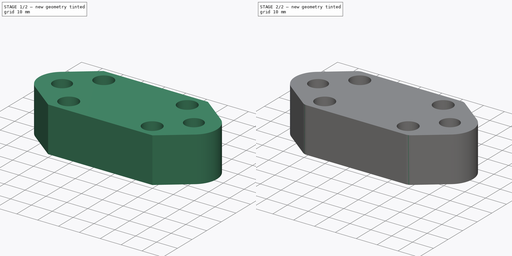
[diagram: build sequence overview — one tinted view per stage of 2, left to right]
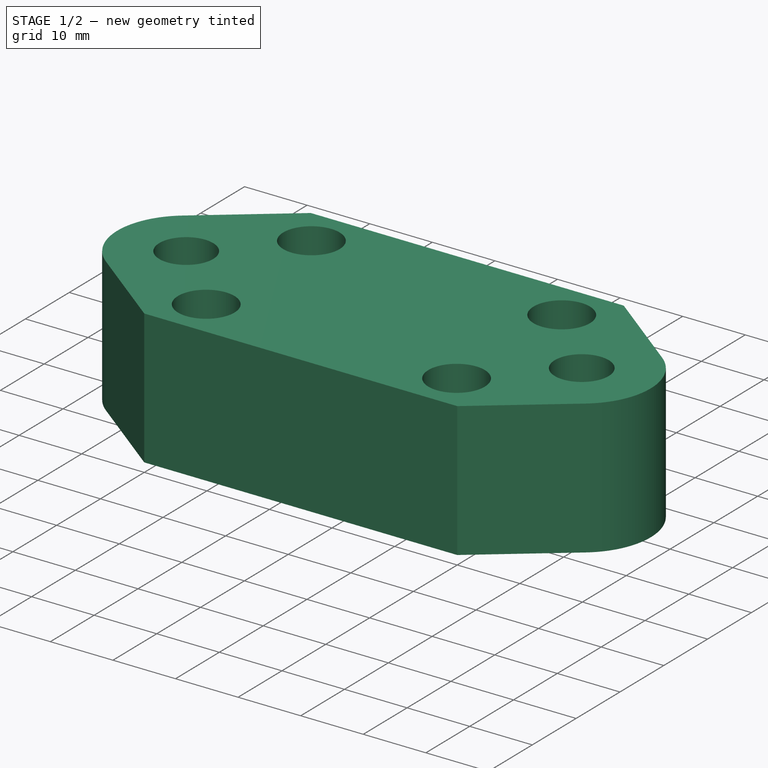
[diagram: stage 1 of 2 — iso view after this stage's code; geometry added in this stage tinted green]
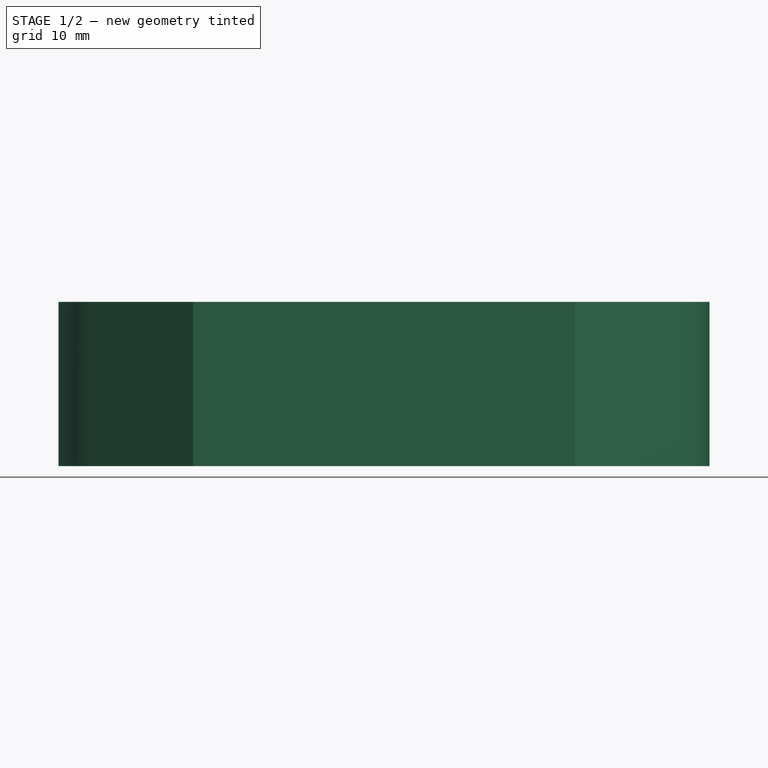
[diagram: stage 1 of 2 — front view after this stage's code; geometry added in this stage tinted green]
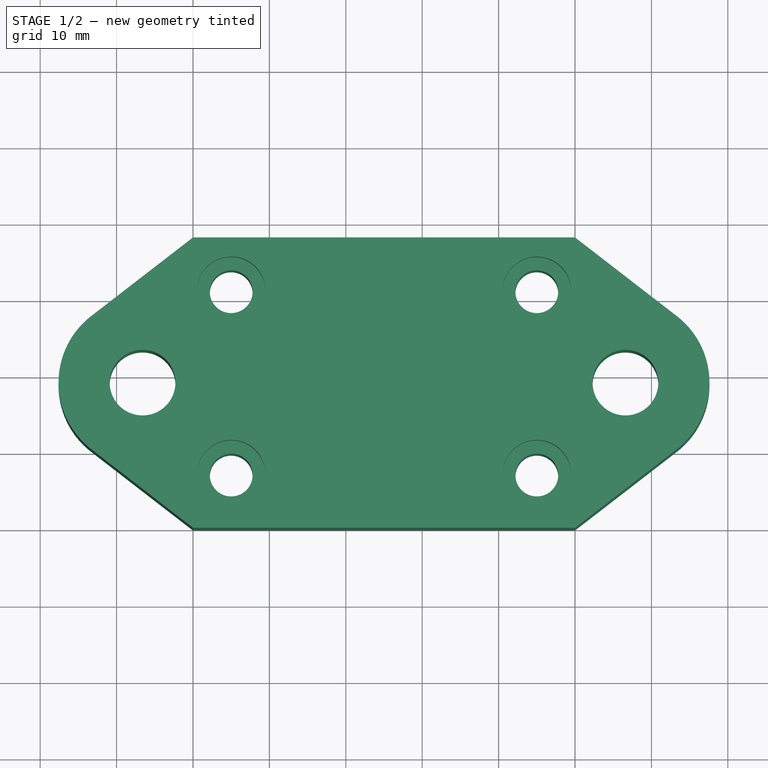
[diagram: stage 1 of 2 — top view after this stage's code; geometry added in this stage tinted green]
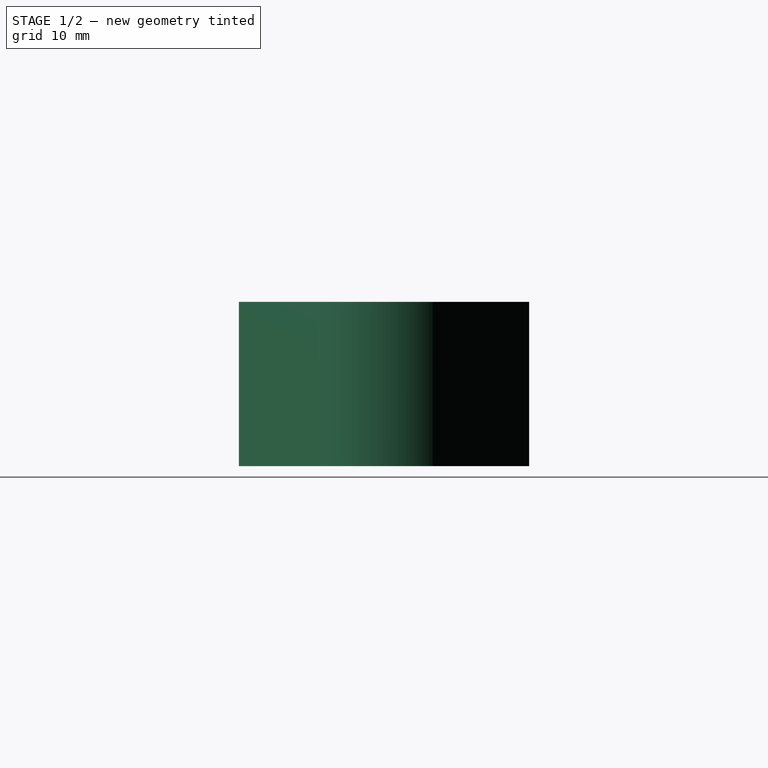
[diagram: stage 1 of 2 — right view after this stage's code; geometry added in this stage tinted green]
FCSTD DOCUMENT  (FreeCAD 1.0R39109 (Git))
Label: DSG16H_to_profile_40x40
License: All rights reserved
LicenseURL: https://en.wikipedia.org/wiki/All_rights_reserved
objects: Sketcher::SketchObject×3, PartDesign::Pocket×2, PartDesign::Pad×1, PartDesign::Fillet×1, PartDesign::Body×1
note: 19 computed .brp shape members not serialized (recipe doc carries the construction recipe); baked Part::Feature solids carry a one-line shape summary decoded from their .brp

FEATURE [Sketcher::SketchObject] Sketch
  ArcFitTolerance = 1e-06
  AttachmentSupport = -> [XY_Plane]
  FullyConstrained = true
  MakeInternals = false
  MapMode = 5
  sketch-geometry (24):
    g0: LineSegment StartX=0 StartY=0 StartZ=0 EndX=50 EndY=0 EndZ=0
    g1: LineSegment StartX=50 StartY=38 StartZ=0 EndX=0 EndY=38 EndZ=0
    g2: LineSegment [constr] StartX=5 StartY=7 StartZ=0 EndX=45 EndY=7 EndZ=0
    g3: LineSegment [constr] StartX=45 StartY=7 StartZ=0 EndX=45 EndY=31 EndZ=0
    g4: LineSegment [constr] StartX=45 StartY=31 StartZ=0 EndX=5 EndY=31 EndZ=0
    g5: LineSegment [constr] StartX=5 StartY=31 StartZ=0 EndX=5 EndY=7 EndZ=0
    g6: LineSegment [constr] StartX=0 StartY=0 StartZ=0 EndX=5 EndY=7 EndZ=0
    g7: LineSegment [constr] StartX=5 StartY=31 StartZ=0 EndX=0 EndY=38 EndZ=0
    g8: LineSegment [constr] StartX=45 StartY=31 StartZ=0 EndX=50 EndY=38 EndZ=0
    g9: Circle CenterX=5 CenterY=31 CenterZ=0 NormalX=0 NormalY=0 NormalZ=1 AngleXU=0 Radius=2.8
    g10: Circle CenterX=45 CenterY=31 CenterZ=0 NormalX=0 NormalY=0 NormalZ=1 AngleXU=0 Radius=2.8
    g11: Circle CenterX=45 CenterY=7 CenterZ=0 NormalX=0 NormalY=0 NormalZ=1 AngleXU=0 Radius=2.8
    g12: Circle CenterX=5 CenterY=7 CenterZ=0 NormalX=0 NormalY=0 NormalZ=1 AngleXU=0 Radius=2.8
    g13: Circle [constr] CenterX=-6.6 CenterY=19 CenterZ=0 NormalX=0 NormalY=0 NormalZ=1 AngleXU=0 Radius=6.6
    g14: Circle [constr] CenterX=56.6 CenterY=19 CenterZ=0 NormalX=0 NormalY=0 NormalZ=1 AngleXU=0 Radius=6.6
    g15: Circle CenterX=-6.6 CenterY=19 CenterZ=0 NormalX=0 NormalY=0 NormalZ=1 AngleXU=0 Radius=4.3
    g16: Circle CenterX=56.6 CenterY=19 CenterZ=0 NormalX=0 NormalY=0 NormalZ=1 AngleXU=0 Radius=4.3
    g17: LineSegment StartX=0 StartY=38 StartZ=0 EndX=-13.3253 EndY=27.7046 EndZ=0
    g18: LineSegment StartX=0 StartY=0 StartZ=0 EndX=-13.3253 EndY=10.2954 EndZ=0
    g19: LineSegment StartX=50 StartY=0 StartZ=0 EndX=63.3253 EndY=10.2954 EndZ=0
    g20: LineSegment StartX=50 StartY=38 StartZ=0 EndX=63.3253 EndY=27.7046 EndZ=0
    g21: ArcOfCircle CenterX=-6.6 CenterY=19 CenterZ=0 NormalX=0 NormalY=0 NormalZ=1 AngleXU=0 Radius=11 StartAngle=2.22862 EndAngle=4.05457
    g22: ArcOfCircle CenterX=56.6 CenterY=19 CenterZ=0 NormalX=0 NormalY=0 NormalZ=1 AngleXU=0 Radius=11 StartAngle=5.37021 EndAngle=7.19616
    g23: LineSegment [constr] StartX=50 StartY=38 StartZ=0 EndX=50 EndY=0 EndZ=0
  constraints (57):
    c: Horizontal(g0)
    c: Horizontal(g1)
    c: Distance(g0,g1) = 38
    c: Coincident(g0,g-1)
    c: Coincident(g2,g3)
    c: Coincident(g3,g4)
    c: Coincident(g4,g5)
    c: Coincident(g5,g2)
    c: Horizontal(g2)
    c: Horizontal(g4)
    c: Vertical(g3)
    c: Vertical(g5)
    c: Distance(g3,g5) = 40
    c: Distance(g2,g4) = 24
    c: Coincident(g6,g0)
    c: Coincident(g6,g2)
    c: Coincident(g7,g4)
    c: Coincident(g7,g1)
    c: Coincident(g8,g3)
    c: Equal(g7,g6)
    c: Equal(g6,g8)
    c: Coincident(g9,g4)
    c: Coincident(g10,g3)
    c: Coincident(g11,g2)
    c: Coincident(g12,g2)
    c: Diameter(g9) = 5.6
    c: Equal(g9,g10)
    c: Equal(g10,g11)
    c: Equal(g11,g12)
    c: Equal(g13,g14)
    c: Diameter(g13) = 13.2
    c: DistanceX(g0,g0) = 50
    c: DistanceY(g13) = 19
    c: DistanceY(g13,g14) = 0
    c: Coincident(g15,g13)
    c: Coincident(g16,g14)
    c: Equal(g15,g16)
    c: Diameter(g15) = 8.6
    c: Coincident(g17,g1)
    c: Coincident(g18,g0)
    c: Coincident(g19,g0)
    c: Coincident(g21,g13)
    c: Coincident(g22,g14)
    c: Coincident(g1,g20)
    c: Coincident(g8,g1)
    c: PointOnObject(g1,g-2)
    c: Equal(g0,g1)
    c: Tangent(g21,g17) = -1.5708
    c: Tangent(g21,g18) = 1.5708
    c: Tangent(g22,g19) = -1.5708
    c: Tangent(g22,g20) = 1.5708
    c: Equal(g21,g22)
    c: Diameter(g21) = 22
    c: Tangent(g13,g-2)
    c: Coincident(g23,g1)
    c: Coincident(g23,g0)
    c: Tangent(g14,g23)
FEATURE [PartDesign::Pad] Pad
  Direction = (0,0,1)
  Length = 21.5
  Length2 = 10
  Profile = -> Sketch
  ReferenceAxis = -> Sketch [N_Axis]
  Refine = true
  Suppressed = false
  Type = 0
FEATURE [Sketcher::SketchObject] Sketch001
  ArcFitTolerance = 1e-06
  AttachmentSupport = -> [Pad]
  FullyConstrained = true
  MakeInternals = false
  MapMode = 5
  Placement = pos=(0,0,21.5) rot=(0,0,1;0rad)
  expr: Constraints[12] = Sketch.Constraints[12]
  expr: Constraints[13] = Sketch.Constraints[13]
  expr: Constraints[25] = Sketch.Constraints[25]
  expr: Constraints[2] = Sketch.Constraints[2]
  expr: Constraints[30] = Sketch.Constraints[30]
  expr: Constraints[31] = Sketch.Constraints[31]
  expr: Constraints[32] = Sketch.Constraints[32]
  expr: Constraints[33] = Sketch.Constraints[33]
  expr: Constraints[37] = Sketch.Constraints[37]
  expr: Constraints[52] = Sketch.Constraints[52]
  sketch-geometry (28):
    g0: LineSegment [constr] StartX=0 StartY=0 StartZ=0 EndX=50 EndY=0 EndZ=0
    g1: LineSegment [constr] StartX=50 StartY=38 StartZ=0 EndX=0 EndY=38 EndZ=0
    g2: LineSegment [constr] StartX=5 StartY=7 StartZ=0 EndX=45 EndY=7 EndZ=0
    g3: LineSegment [constr] StartX=45 StartY=7 StartZ=0 EndX=45 EndY=31 EndZ=0
    g4: LineSegment [constr] StartX=45 StartY=31 StartZ=0 EndX=5 EndY=31 EndZ=0
    g5: LineSegment [constr] StartX=5 StartY=31 StartZ=0 EndX=5 EndY=7 EndZ=0
    g6: LineSegment [constr] StartX=0 StartY=0 StartZ=0 EndX=5 EndY=7 EndZ=0
    g7: LineSegment [constr] StartX=5 StartY=31 StartZ=0 EndX=0 EndY=38 EndZ=0
    g8: LineSegment [constr] StartX=45 StartY=31 StartZ=0 EndX=50 EndY=38 EndZ=0
    g9: Circle [constr] CenterX=5 CenterY=31 CenterZ=0 NormalX=0 NormalY=0 NormalZ=1 AngleXU=0 Radius=2.8
    g10: Circle [constr] CenterX=45 CenterY=31 CenterZ=0 NormalX=0 NormalY=0 NormalZ=1 AngleXU=0 Radius=2.8
    g11: Circle [constr] CenterX=45 CenterY=7 CenterZ=0 NormalX=0 NormalY=0 NormalZ=1 AngleXU=0 Radius=2.8
    g12: Circle [constr] CenterX=5 CenterY=7 CenterZ=0 NormalX=0 NormalY=0 NormalZ=1 AngleXU=0 Radius=2.8
    g13: Circle [constr] CenterX=-6.6 CenterY=19 CenterZ=0 NormalX=0 NormalY=0 NormalZ=1 AngleXU=0 Radius=6.6
    g14: Circle [constr] CenterX=56.6 CenterY=19 CenterZ=0 NormalX=0 NormalY=0 NormalZ=1 AngleXU=0 Radius=6.6
    g15: Circle [constr] CenterX=-6.6 CenterY=19 CenterZ=0 NormalX=0 NormalY=0 NormalZ=1 AngleXU=0 Radius=4.3
    g16: Circle [constr] CenterX=56.6 CenterY=19 CenterZ=0 NormalX=0 NormalY=0 NormalZ=1 AngleXU=0 Radius=4.3
    g17: LineSegment [constr] StartX=0 StartY=38 StartZ=0 EndX=-13.3253 EndY=27.7046 EndZ=0
    g18: LineSegment [constr] StartX=0 StartY=0 StartZ=0 EndX=-13.3253 EndY=10.2954 EndZ=0
    g19: LineSegment [constr] StartX=50 StartY=0 StartZ=0 EndX=63.3253 EndY=10.2954 EndZ=0
    g20: LineSegment [constr] StartX=50 StartY=38 StartZ=0 EndX=63.3253 EndY=27.7046 EndZ=0
    g21: ArcOfCircle [constr] CenterX=-6.6 CenterY=19 CenterZ=0 NormalX=0 NormalY=0 NormalZ=1 AngleXU=0 Radius=11 StartAngle=2.22862 EndAngle=4.05457
    g22: ArcOfCircle [constr] CenterX=56.6 CenterY=19 CenterZ=0 NormalX=0 NormalY=0 NormalZ=1 AngleXU=0 Radius=11 StartAngle=5.37021 EndAngle=7.19616
    g23: LineSegment [constr] StartX=50 StartY=38 StartZ=0 EndX=50 EndY=0 EndZ=0
    g24: Circle CenterX=5 CenterY=31 CenterZ=0 NormalX=0 NormalY=0 NormalZ=1 AngleXU=0 Radius=4.5
    g25: Circle CenterX=45 CenterY=31 CenterZ=0 NormalX=0 NormalY=0 NormalZ=1 AngleXU=0 Radius=4.5
    g26: Circle CenterX=45 CenterY=7 CenterZ=0 NormalX=0 NormalY=0 NormalZ=1 AngleXU=0 Radius=4.5
    g27: Circle CenterX=5 CenterY=7 CenterZ=0 NormalX=0 NormalY=0 NormalZ=1 AngleXU=0 Radius=4.5
  constraints (65):
    c: Horizontal(g0)
    c: Horizontal(g1)
    c: Distance(g0,g1) = 38
    c: Coincident(g0,g-1)
    c: Coincident(g2,g3)
    c: Coincident(g3,g4)
    c: Coincident(g4,g5)
    c: Coincident(g5,g2)
    c: Horizontal(g2)
    c: Horizontal(g4)
    c: Vertical(g3)
    c: Vertical(g5)
    c: Distance(g3,g5) = 40
    c: Distance(g2,g4) = 24
    c: Coincident(g6,g0)
    c: Coincident(g6,g2)
    c: Coincident(g7,g4)
    c: Coincident(g7,g1)
    c: Coincident(g8,g3)
    c: Equal(g7,g6)
    c: Equal(g6,g8)
    c: Coincident(g9,g4)
    c: Coincident(g10,g3)
    c: Coincident(g11,g2)
    c: Coincident(g12,g2)
    c: Diameter(g9) = 5.6
    c: Equal(g9,g10)
    c: Equal(g10,g11)
    c: Equal(g11,g12)
    c: Equal(g13,g14)
    c: Diameter(g13) = 13.2
    c: DistanceX(g0,g0) = 50
    c: DistanceY(g13) = 19
    c: DistanceY(g13,g14) = 0
    c: Coincident(g15,g13)
    c: Coincident(g16,g14)
    c: Equal(g15,g16)
    c: Diameter(g15) = 8.6
    c: Coincident(g17,g1)
    c: Coincident(g18,g0)
    c: Coincident(g19,g0)
    c: Coincident(g21,g13)
    c: Coincident(g22,g14)
    c: Coincident(g1,g20)
    c: Coincident(g8,g1)
    c: PointOnObject(g1,g-2)
    c: Equal(g0,g1)
    c: Tangent(g21,g17) = -1.5708
    c: Tangent(g21,g18) = 1.5708
    c: Tangent(g22,g19) = -1.5708
    c: Tangent(g22,g20) = 1.5708
    c: Equal(g21,g22)
    c: Diameter(g21) = 22
    c: Tangent(g13,g-2)
    c: Coincident(g23,g1)
    c: Coincident(g23,g0)
    c: Tangent(g14,g23)
    c: Coincident(g24,g4)
    c: Coincident(g25,g3)
    c: Coincident(g26,g2)
    c: Coincident(g27,g2)
    c: Equal(g27,g24)
    c: Equal(g27,g25)
    c: Equal(g27,g26)
    c: Diameter(g27) = 9
FEATURE [PartDesign::Pocket] Pocket
  BaseFeature = -> Pad
  Direction = (0,0,-1)
  Length = 6
  Length2 = 5
  Profile = -> Sketch001
  ReferenceAxis = -> Sketch001 [N_Axis]
  Refine = true
  Suppressed = false
  Type = 0
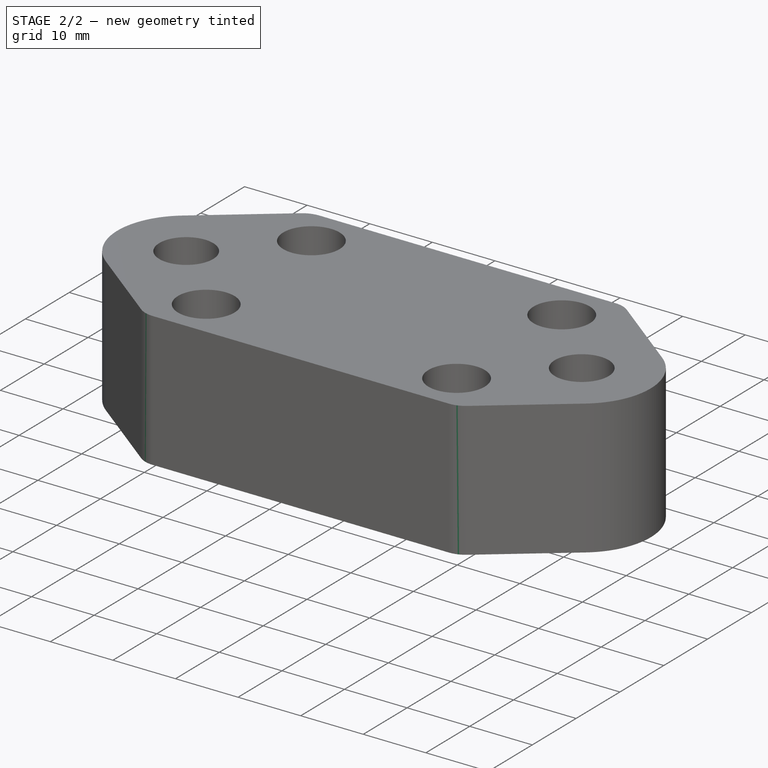
[diagram: stage 2 of 2 — iso view after this stage's code; geometry added in this stage tinted green]
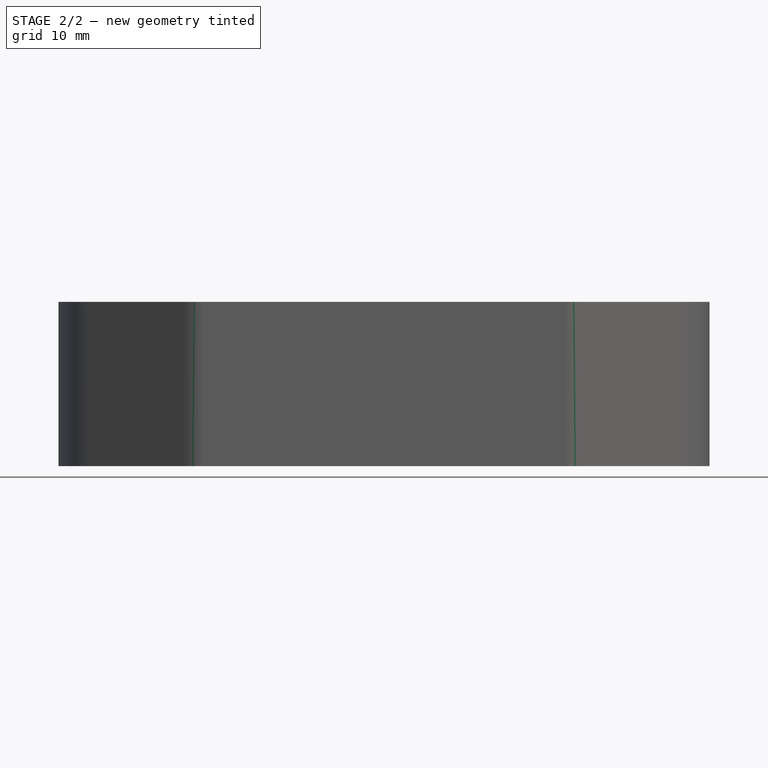
[diagram: stage 2 of 2 — front view after this stage's code; geometry added in this stage tinted green]
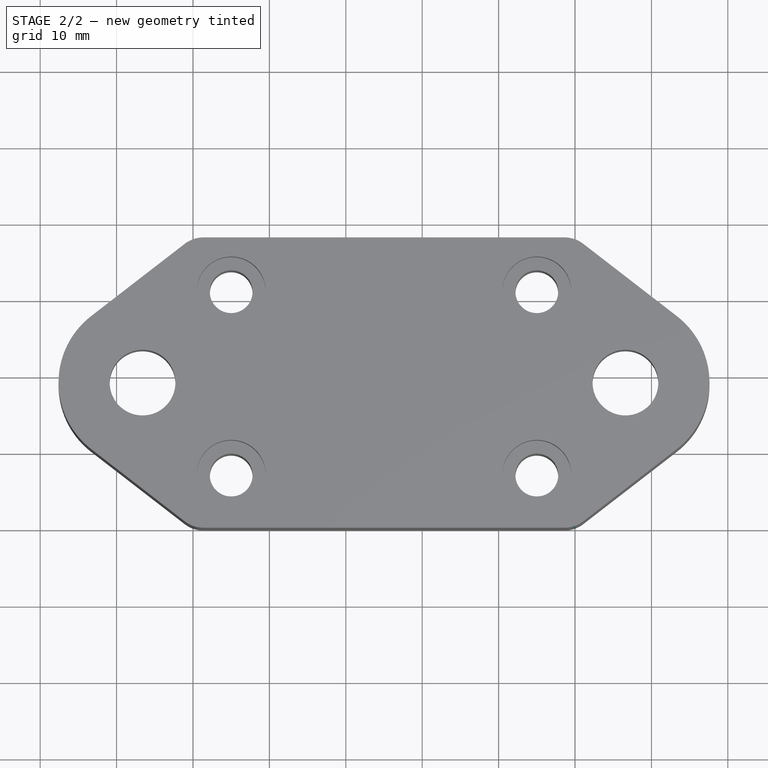
[diagram: stage 2 of 2 — top view after this stage's code; geometry added in this stage tinted green]
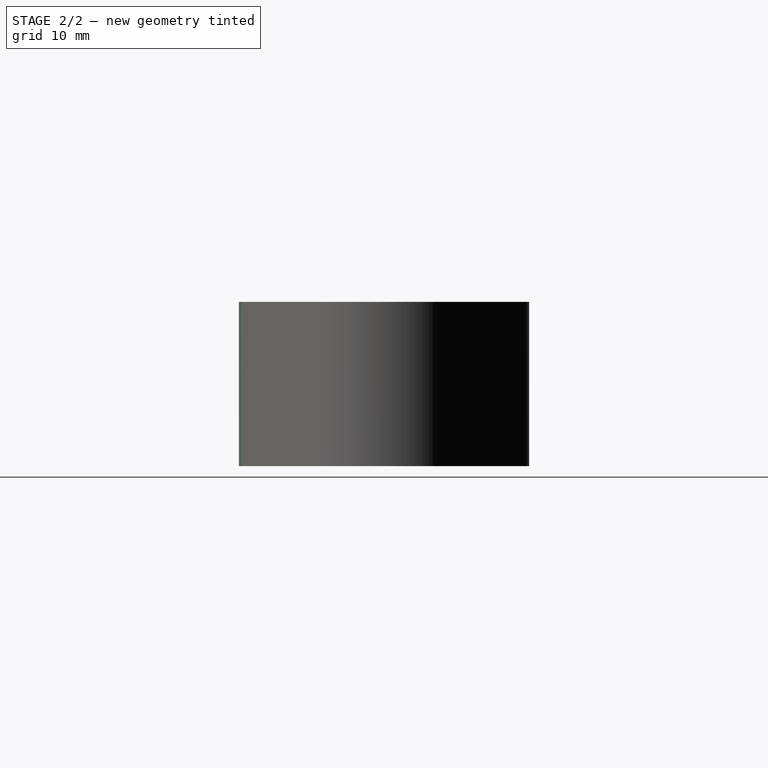
[diagram: stage 2 of 2 — right view after this stage's code; geometry added in this stage tinted green]
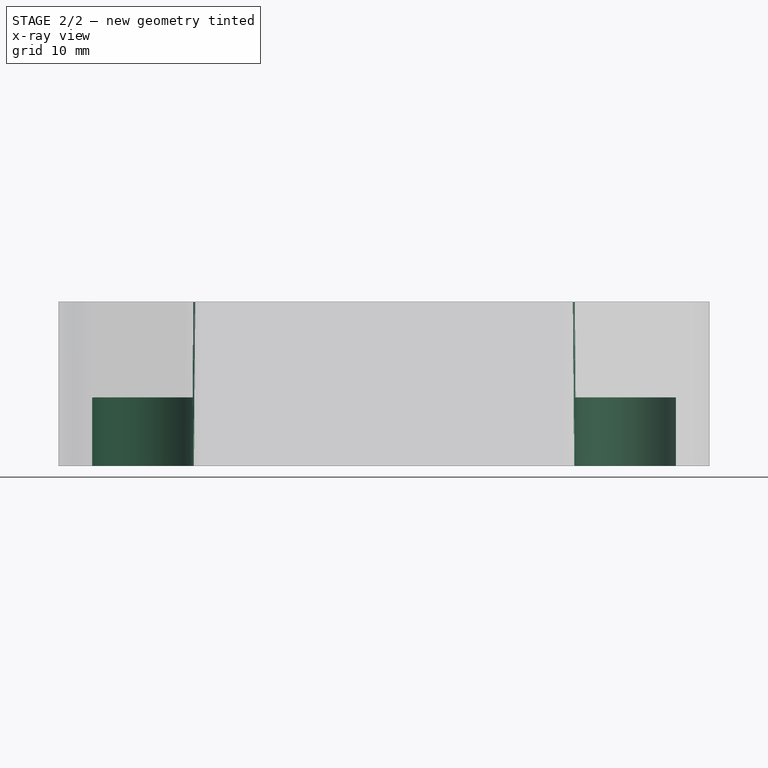
[diagram: stage 2 of 2 — x-ray composite at the front view; earlier geometry ghosted, this stage's added geometry solid]
FEATURE [Sketcher::SketchObject] Sketch002
  ArcFitTolerance = 1e-06
  AttachmentSupport = -> [Pocket]
  FullyConstrained = true
  MakeInternals = false
  MapMode = 5
  Placement = pos=(0,0,0) rot=(1,0,0;3.14159rad)
  expr: Constraints[12] = Sketch.Constraints[12]
  expr: Constraints[13] = Sketch.Constraints[13]
  expr: Constraints[25] = Sketch.Constraints[25]
  expr: Constraints[2] = Sketch.Constraints[2]
  expr: Constraints[30] = Sketch.Constraints[30]
  expr: Constraints[31] = Sketch.Constraints[31]
  expr: Constraints[32] = Sketch.Constraints[32]
  expr: Constraints[33] = Sketch.Constraints[33]
  expr: Constraints[37] = Sketch.Constraints[37]
  expr: Constraints[52] = Sketch.Constraints[52]
  sketch-geometry (26):
    g0: LineSegment [constr] StartX=0 StartY=0 StartZ=0 EndX=50 EndY=0 EndZ=0
    g1: LineSegment [constr] StartX=50 StartY=38 StartZ=0 EndX=0 EndY=38 EndZ=0
    g2: LineSegment [constr] StartX=5 StartY=7 StartZ=0 EndX=45 EndY=7 EndZ=0
    g3: LineSegment [constr] StartX=45 StartY=7 StartZ=0 EndX=45 EndY=31 EndZ=0
    g4: LineSegment [constr] StartX=45 StartY=31 StartZ=0 EndX=5 EndY=31 EndZ=0
    g5: LineSegment [constr] StartX=5 StartY=31 StartZ=0 EndX=5 EndY=7 EndZ=0
    g6: LineSegment [constr] StartX=0 StartY=0 StartZ=0 EndX=5 EndY=7 EndZ=0
    g7: LineSegment [constr] StartX=5 StartY=31 StartZ=0 EndX=-9e-16 EndY=38 EndZ=0
    g8: LineSegment [constr] StartX=45 StartY=31 StartZ=0 EndX=50 EndY=38 EndZ=0
    g9: Circle [constr] CenterX=5 CenterY=31 CenterZ=0 NormalX=0 NormalY=0 NormalZ=1 AngleXU=0 Radius=2.8
    g10: Circle [constr] CenterX=45 CenterY=31 CenterZ=0 NormalX=0 NormalY=0 NormalZ=1 AngleXU=0 Radius=2.8
    g11: Circle [constr] CenterX=45 CenterY=7 CenterZ=0 NormalX=0 NormalY=0 NormalZ=1 AngleXU=0 Radius=2.8
    g12: Circle [constr] CenterX=5 CenterY=7 CenterZ=0 NormalX=0 NormalY=0 NormalZ=1 AngleXU=0 Radius=2.8
    g13: Circle [constr] CenterX=-6.6 CenterY=19 CenterZ=0 NormalX=0 NormalY=0 NormalZ=1 AngleXU=0 Radius=6.6
    g14: Circle [constr] CenterX=56.6 CenterY=19 CenterZ=0 NormalX=0 NormalY=0 NormalZ=1 AngleXU=0 Radius=6.6
    g15: Circle [constr] CenterX=-6.6 CenterY=19 CenterZ=0 NormalX=0 NormalY=0 NormalZ=1 AngleXU=0 Radius=4.3
    g16: Circle [constr] CenterX=56.6 CenterY=19 CenterZ=0 NormalX=0 NormalY=0 NormalZ=1 AngleXU=0 Radius=4.3
    g17: LineSegment [constr] StartX=-9e-16 StartY=38 StartZ=0 EndX=-13.3253 EndY=27.7046 EndZ=0
    g18: LineSegment [constr] StartX=0 StartY=0 StartZ=0 EndX=-13.3253 EndY=10.2954 EndZ=0
    g19: LineSegment [constr] StartX=50 StartY=0 StartZ=0 EndX=63.3253 EndY=10.2954 EndZ=0
    g20: LineSegment [constr] StartX=50 StartY=38 StartZ=0 EndX=63.3253 EndY=27.7046 EndZ=0
    g21: ArcOfCircle [constr] CenterX=-6.6 CenterY=19 CenterZ=0 NormalX=0 NormalY=0 NormalZ=1 AngleXU=0 Radius=11 StartAngle=2.22862 EndAngle=4.05457
    g22: ArcOfCircle [constr] CenterX=56.6 CenterY=19 CenterZ=0 NormalX=0 NormalY=0 NormalZ=1 AngleXU=0 Radius=11 StartAngle=5.37021 EndAngle=7.19616
    g23: LineSegment [constr] StartX=50 StartY=38 StartZ=0 EndX=50 EndY=0 EndZ=0
    g24: Circle CenterX=-6.6 CenterY=-19 CenterZ=0 NormalX=0 NormalY=0 NormalZ=1 AngleXU=0 Radius=6.6
    g25: Circle CenterX=56.6 CenterY=-19 CenterZ=0 NormalX=0 NormalY=0 NormalZ=1 AngleXU=0 Radius=6.6
  constraints (63):
    c: Horizontal(g0)
    c: Horizontal(g1)
    c: Distance(g0,g1) = 38
    c: Coincident(g0,g-1)
    c: Coincident(g2,g3)
    c: Coincident(g3,g4)
    c: Coincident(g4,g5)
    c: Coincident(g5,g2)
    c: Horizontal(g2)
    c: Horizontal(g4)
    c: Vertical(g3)
    c: Vertical(g5)
    c: Distance(g3,g5) = 40
    c: Distance(g2,g4) = 24
    c: Coincident(g6,g0)
    c: Coincident(g6,g2)
    c: Coincident(g7,g4)
    c: Coincident(g7,g1)
    c: Coincident(g8,g3)
    c: Equal(g7,g6)
    c: Equal(g6,g8)
    c: Coincident(g9,g4)
    c: Coincident(g10,g3)
    c: Coincident(g11,g2)
    c: Coincident(g12,g2)
    c: Diameter(g9) = 5.6
    c: Equal(g9,g10)
    c: Equal(g10,g11)
    c: Equal(g11,g12)
    c: Equal(g13,g14)
    c: Diameter(g13) = 13.2
    c: DistanceX(g0,g0) = 50
    c: DistanceY(g13) = 19
    c: DistanceY(g13,g14) = 0
    c: Coincident(g15,g13)
    c: Coincident(g16,g14)
    c: Equal(g15,g16)
    c: Diameter(g15) = 8.6
    c: Coincident(g17,g1)
    c: Coincident(g18,g0)
    c: Coincident(g19,g0)
    c: Coincident(g21,g13)
    c: Coincident(g22,g14)
    c: Coincident(g1,g20)
    c: Coincident(g8,g1)
    c: PointOnObject(g1,g-2)
    c: Equal(g0,g1)
    c: Tangent(g21,g17) = -1.5708
    c: Tangent(g21,g18) = 1.5708
    c: Tangent(g22,g19) = -1.5708
    c: Tangent(g22,g20) = 1.5708
    c: Equal(g21,g22)
    c: Diameter(g21) = 22
    c: Tangent(g13,g-2)
    c: Coincident(g23,g1)
    c: Coincident(g23,g0)
    c: Tangent(g14,g23)
    c: Equal(g25,g24)
    c: Equal(g24,g13)
    c: DistanceX(g13,g24) = 0
    c: DistanceX(g14,g25) = 0
    c: DistanceY(g25,g24) = 0
    c: DistanceY(g24) = -19
FEATURE [PartDesign::Pocket] Pocket001
  BaseFeature = -> Pocket
  Direction = (0,0,1)
  Length = 9
  Length2 = 5
  Profile = -> Sketch002
  ReferenceAxis = -> Sketch002 [N_Axis]
  Refine = true
  Suppressed = false
  Type = 0
FEATURE [PartDesign::Fillet] Fillet
  Base = -> Pocket001 [Edge2,Edge36,Edge35,Edge1]
  BaseFeature = -> Pocket001
  Radius = 4
  Refine = true
  SupportTransform = false
  Suppressed = false
  UseAllEdges = false
FEATURE [PartDesign::Body] Body  label="DSG16H_to_profile_40x40"
  AllowCompound = false
  Group = -> [Sketch,Pad,Sketch001,Pocket,Sketch002,Pocket001,Fillet]
  Origin = -> Origin
  Tip = -> Fillet
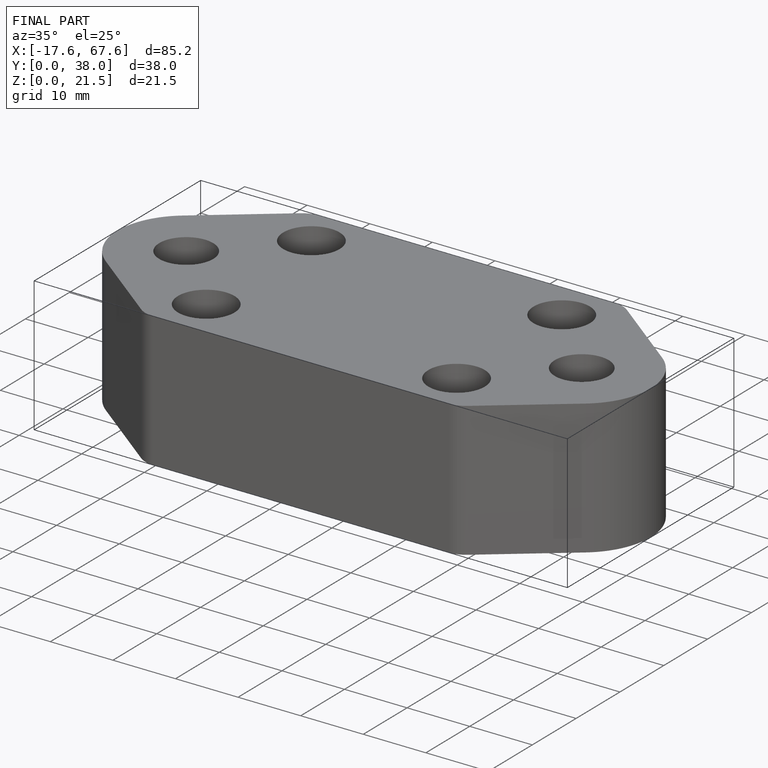
[diagram: finished part — iso view with bounding-box wireframe]
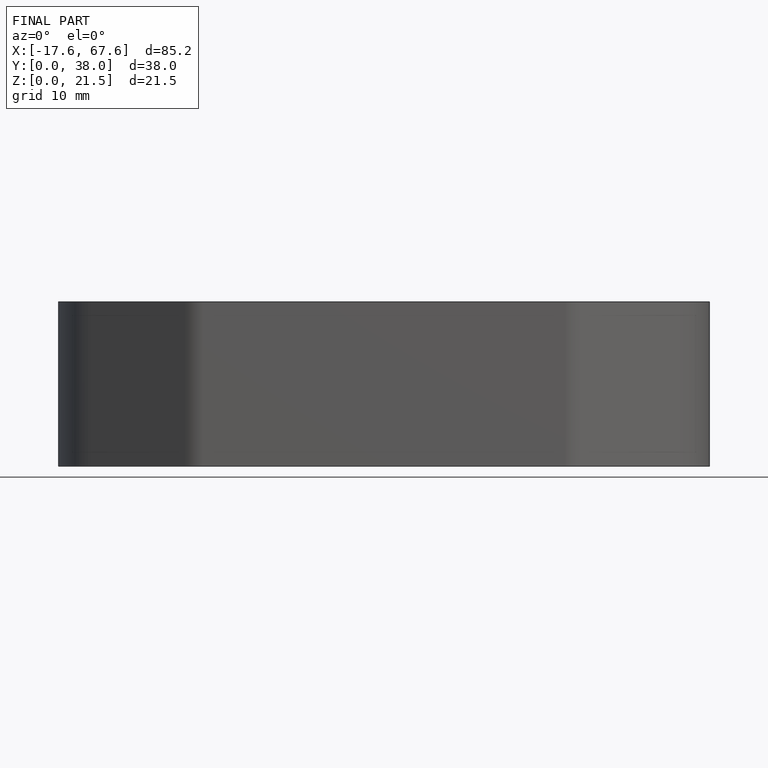
[diagram: finished part — front view with bounding-box wireframe]
